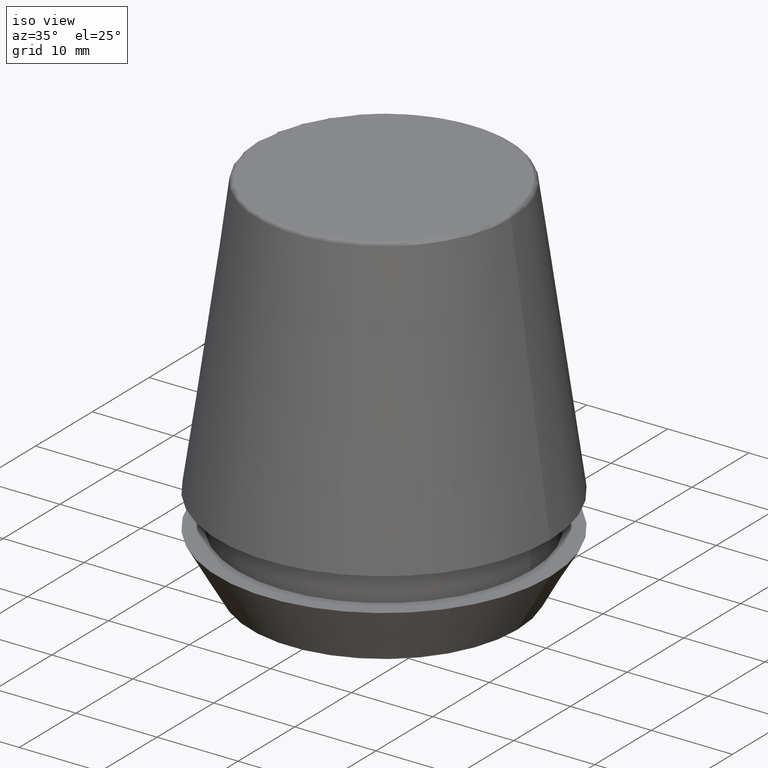
[diagram: clean part render]
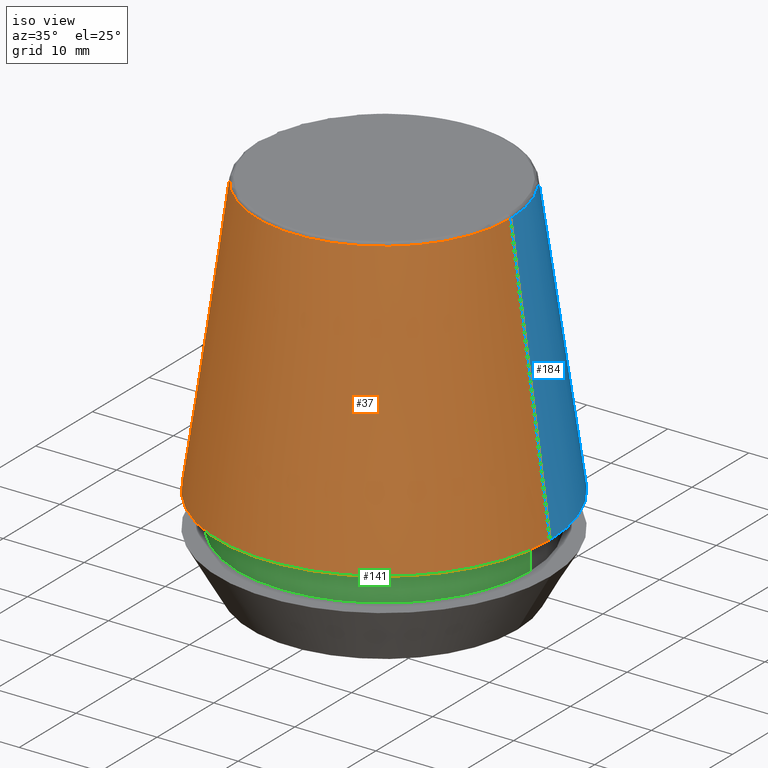
[diagram: same view with three faces highlighted in distinct colors, each labeled with its STEP entity id]
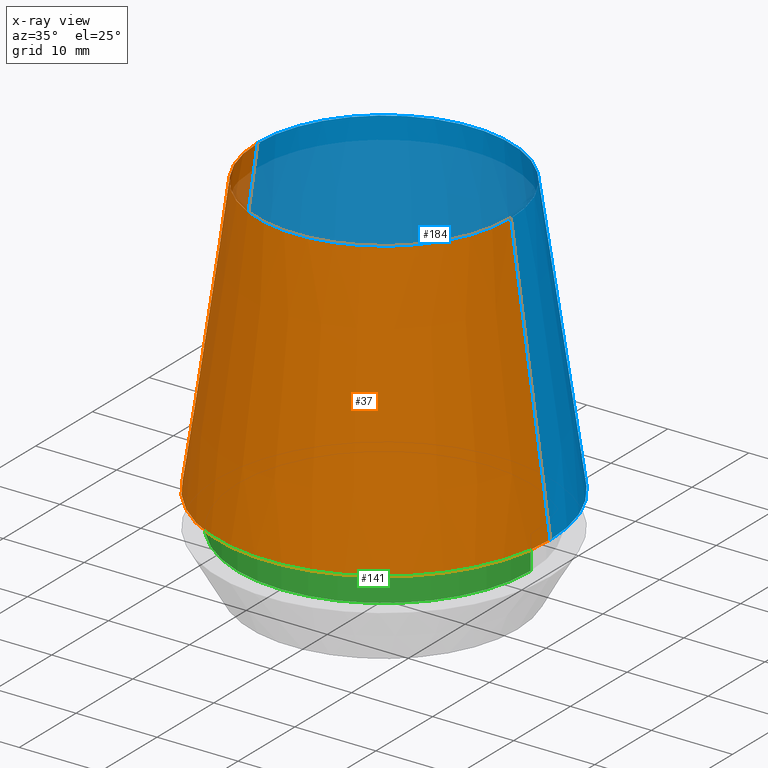
[diagram: x-ray of the same camera — body ghosted, the three highlighted faces saturated]
A machine part, iso view with three faces highlighted in distinct colors.
The next image is the same camera in x-ray (body ghosted, the three faces saturated) — at least one of them is partly hidden behind the body in this view.
Their STEP definitions:

[orange] entity #37 — the highlighted conical surface has half-angle 8 deg.
#1 = DIRECTION ( 'NONE',  ( 1.000000000000000000, 0.0000000000000000000, 0.0000000000000000000 ) ) ;
#7 = EDGE_CURVE ( 'NONE', #333, #109, #367, .T. ) ;
#8 = VERTEX_POINT ( 'NONE', #320 ) ;
#15 = CIRCLE ( 'NONE', #350, 20.50032537154048700 ) ;
#29 = DIRECTION ( 'NONE',  ( -0.0000000000000000000, -0.0000000000000000000, 1.000000000000000000 ) ) ;
#37 = ADVANCED_FACE ( 'NONE', ( #66 ), #197, .T. ) ;
#41 = LINE ( 'NONE', #74, #326 ) ;
#58 = AXIS2_PLACEMENT_3D ( 'NONE', #156, #354, #236 ) ;
#64 = ORIENTED_EDGE ( 'NONE', *, *, #7, .F. ) ;
#65 = EDGE_LOOP ( 'NONE', ( #306, #64, #239, #279 ) ) ;
#66 = FACE_OUTER_BOUND ( 'NONE', #65, .T. ) ;
#74 = CARTESIAN_POINT ( 'NONE',  ( -20.50032537154048700, 0.0000000000000000000, 11.09999999999999800 ) ) ;
#109 = VERTEX_POINT ( 'NONE', #378 ) ;
#121 = CARTESIAN_POINT ( 'NONE',  ( 0.0000000000000000000, 0.0000000000000000000, 45.65566924038402900 ) ) ;
#122 = CARTESIAN_POINT ( 'NONE',  ( 20.50032537154048700, 2.510565784773633700E-015, 11.09999999999999800 ) ) ;
#138 = DIRECTION ( 'NONE',  ( -0.1391731009600587200, 0.0000000000000000000, -0.9902680687415712500 ) ) ;
#156 = CARTESIAN_POINT ( 'NONE',  ( 0.0000000000000000000, 0.0000000000000000000, 11.09999999999999800 ) ) ;
#197 = CONICAL_SURFACE ( 'NONE', #58, 20.50032537154048700, 0.1396263401595396200 ) ;
#201 = LINE ( 'NONE', #290, #284 ) ;
#203 = CARTESIAN_POINT ( 'NONE',  ( 0.0000000000000000000, 0.0000000000000000000, 11.09999999999999800 ) ) ;
#223 = EDGE_CURVE ( 'NONE', #8, #261, #15, .T. ) ;
#234 = DIRECTION ( 'NONE',  ( 1.000000000000000000, 0.0000000000000000000, 0.0000000000000000000 ) ) ;
#235 = DIRECTION ( 'NONE',  ( 0.1391731009600587200, 1.704378926181473400E-017, -0.9902680687415712500 ) ) ;
#236 = DIRECTION ( 'NONE',  ( -1.000000000000000000, 0.0000000000000000000, 0.0000000000000000000 ) ) ;
#239 = ORIENTED_EDGE ( 'NONE', *, *, #339, .T. ) ;
#261 = VERTEX_POINT ( 'NONE', #122 ) ;
#279 = ORIENTED_EDGE ( 'NONE', *, *, #223, .T. ) ;
#284 = VECTOR ( 'NONE', #235, 1000.000000000000000 ) ;
#286 = DIRECTION ( 'NONE',  ( -0.0000000000000000000, -0.0000000000000000000, 1.000000000000000000 ) ) ;
#290 = CARTESIAN_POINT ( 'NONE',  ( 20.50032537154048700, 2.510565784773633700E-015, 11.09999999999999800 ) ) ;
#295 = EDGE_CURVE ( 'NONE', #109, #261, #201, .T. ) ;
#306 = ORIENTED_EDGE ( 'NONE', *, *, #295, .F. ) ;
#307 = CARTESIAN_POINT ( 'NONE',  ( -15.64384277279740400, 0.0000000000000000000, 45.65566924038402900 ) ) ;
#317 = AXIS2_PLACEMENT_3D ( 'NONE', #121, #286, #1 ) ;
#320 = CARTESIAN_POINT ( 'NONE',  ( -20.50032537154048700, 0.0000000000000000000, 11.09999999999999800 ) ) ;
#326 = VECTOR ( 'NONE', #138, 1000.000000000000000 ) ;
#333 = VERTEX_POINT ( 'NONE', #307 ) ;
#339 = EDGE_CURVE ( 'NONE', #333, #8, #41, .T. ) ;
#350 = AXIS2_PLACEMENT_3D ( 'NONE', #203, #29, #234 ) ;
#354 = DIRECTION ( 'NONE',  ( 0.0000000000000000000, 0.0000000000000000000, -1.000000000000000000 ) ) ;
#367 = CIRCLE ( 'NONE', #317, 15.64384277279740400 ) ;
#378 = CARTESIAN_POINT ( 'NONE',  ( 15.64384277279740400, 2.213191991290356800E-015, 45.65566924038402900 ) ) ;

[blue] entity #184 — the highlighted conical surface has half-angle 8 deg.
#8 = VERTEX_POINT ( 'NONE', #320 ) ;
#41 = LINE ( 'NONE', #74, #326 ) ;
#52 = DIRECTION ( 'NONE',  ( 0.0000000000000000000, 0.0000000000000000000, -1.000000000000000000 ) ) ;
#74 = CARTESIAN_POINT ( 'NONE',  ( -20.50032537154048700, 0.0000000000000000000, 11.09999999999999800 ) ) ;
#81 = DIRECTION ( 'NONE',  ( 1.000000000000000000, 0.0000000000000000000, 0.0000000000000000000 ) ) ;
#90 = CIRCLE ( 'NONE', #137, 20.50032537154048700 ) ;
#98 = EDGE_LOOP ( 'NONE', ( #364, #186, #252, #106 ) ) ;
#106 = ORIENTED_EDGE ( 'NONE', *, *, #339, .F. ) ;
#109 = VERTEX_POINT ( 'NONE', #378 ) ;
#122 = CARTESIAN_POINT ( 'NONE',  ( 20.50032537154048700, 2.510565784773633700E-015, 11.09999999999999800 ) ) ;
#123 = FACE_OUTER_BOUND ( 'NONE', #98, .T. ) ;
#127 = EDGE_CURVE ( 'NONE', #261, #8, #90, .T. ) ;
#137 = AXIS2_PLACEMENT_3D ( 'NONE', #193, #256, #81 ) ;
#138 = DIRECTION ( 'NONE',  ( -0.1391731009600587200, 0.0000000000000000000, -0.9902680687415712500 ) ) ;
#165 = AXIS2_PLACEMENT_3D ( 'NONE', #276, #259, #348 ) ;
#184 = ADVANCED_FACE ( 'NONE', ( #123 ), #323, .T. ) ;
#186 = ORIENTED_EDGE ( 'NONE', *, *, #295, .T. ) ;
#189 = EDGE_CURVE ( 'NONE', #109, #333, #334, .T. ) ;
#193 = CARTESIAN_POINT ( 'NONE',  ( 0.0000000000000000000, 0.0000000000000000000, 11.09999999999999800 ) ) ;
#201 = LINE ( 'NONE', #290, #284 ) ;
#235 = DIRECTION ( 'NONE',  ( 0.1391731009600587200, 1.704378926181473400E-017, -0.9902680687415712500 ) ) ;
#252 = ORIENTED_EDGE ( 'NONE', *, *, #127, .T. ) ;
#254 = DIRECTION ( 'NONE',  ( -1.000000000000000000, 0.0000000000000000000, 0.0000000000000000000 ) ) ;
#256 = DIRECTION ( 'NONE',  ( -0.0000000000000000000, -0.0000000000000000000, 1.000000000000000000 ) ) ;
#259 = DIRECTION ( 'NONE',  ( -0.0000000000000000000, -0.0000000000000000000, 1.000000000000000000 ) ) ;
#261 = VERTEX_POINT ( 'NONE', #122 ) ;
#276 = CARTESIAN_POINT ( 'NONE',  ( 0.0000000000000000000, 0.0000000000000000000, 45.65566924038402900 ) ) ;
#284 = VECTOR ( 'NONE', #235, 1000.000000000000000 ) ;
#290 = CARTESIAN_POINT ( 'NONE',  ( 20.50032537154048700, 2.510565784773633700E-015, 11.09999999999999800 ) ) ;
#295 = EDGE_CURVE ( 'NONE', #109, #261, #201, .T. ) ;
#307 = CARTESIAN_POINT ( 'NONE',  ( -15.64384277279740400, 0.0000000000000000000, 45.65566924038402900 ) ) ;
#308 = AXIS2_PLACEMENT_3D ( 'NONE', #369, #52, #254 ) ;
#320 = CARTESIAN_POINT ( 'NONE',  ( -20.50032537154048700, 0.0000000000000000000, 11.09999999999999800 ) ) ;
#323 = CONICAL_SURFACE ( 'NONE', #308, 20.50032537154048700, 0.1396263401595396200 ) ;
#326 = VECTOR ( 'NONE', #138, 1000.000000000000000 ) ;
#333 = VERTEX_POINT ( 'NONE', #307 ) ;
#334 = CIRCLE ( 'NONE', #165, 15.64384277279740400 ) ;
#339 = EDGE_CURVE ( 'NONE', #333, #8, #41, .T. ) ;
#348 = DIRECTION ( 'NONE',  ( 1.000000000000000000, 0.0000000000000000000, 0.0000000000000000000 ) ) ;
#364 = ORIENTED_EDGE ( 'NONE', *, *, #189, .F. ) ;
#369 = CARTESIAN_POINT ( 'NONE',  ( 0.0000000000000000000, 0.0000000000000000000, 11.09999999999999800 ) ) ;
#378 = CARTESIAN_POINT ( 'NONE',  ( 15.64384277279740400, 2.213191991290356800E-015, 45.65566924038402900 ) ) ;

[green] entity #141 — the highlighted cylindrical surface (partial cylindrical patch) has radius 18.1 mm, axis along (-0, -0, 1).
#59 = CARTESIAN_POINT ( 'NONE',  ( -18.10000000000000500, 2.216610706456710000E-015, 46.00000000000000000 ) ) ;
#60 = ORIENTED_EDGE ( 'NONE', *, *, #240, .F. ) ;
#63 = EDGE_CURVE ( 'NONE', #247, #373, #208, .T. ) ;
#68 = FACE_OUTER_BOUND ( 'NONE', #182, .T. ) ;
#72 = CYLINDRICAL_SURFACE ( 'NONE', #300, 18.10000000000000500 ) ;
#84 = AXIS2_PLACEMENT_3D ( 'NONE', #202, #351, #183 ) ;
#85 = VECTOR ( 'NONE', #263, 1000.000000000000000 ) ;
#91 = CARTESIAN_POINT ( 'NONE',  ( -18.10000000000000100, 2.216610706456709600E-015, 6.999999999999999100 ) ) ;
#96 = VERTEX_POINT ( 'NONE', #174 ) ;
#104 = VECTOR ( 'NONE', #322, 1000.000000000000000 ) ;
#105 = AXIS2_PLACEMENT_3D ( 'NONE', #196, #204, #374 ) ;
#112 = CARTESIAN_POINT ( 'NONE',  ( 0.0000000000000000000, 0.0000000000000000000, 46.00000000000000000 ) ) ;
#126 = LINE ( 'NONE', #59, #85 ) ;
#133 = VERTEX_POINT ( 'NONE', #313 ) ;
#139 = CARTESIAN_POINT ( 'NONE',  ( 18.10000000000000500, 0.0000000000000000000, 46.00000000000000000 ) ) ;
#141 = ADVANCED_FACE ( 'NONE', ( #68 ), #72, .T. ) ;
#174 = CARTESIAN_POINT ( 'NONE',  ( 18.10000000000000500, 0.0000000000000000000, 11.09999999999999800 ) ) ;
#182 = EDGE_LOOP ( 'NONE', ( #305, #338, #226, #60 ) ) ;
#183 = DIRECTION ( 'NONE',  ( 1.000000000000000000, 0.0000000000000000000, 0.0000000000000000000 ) ) ;
#185 = CARTESIAN_POINT ( 'NONE',  ( 18.10000000000000100, 0.0000000000000000000, 6.999999999999999100 ) ) ;
#196 = CARTESIAN_POINT ( 'NONE',  ( 0.0000000000000000000, 0.0000000000000000000, 6.999999999999999100 ) ) ;
#198 = DIRECTION ( 'NONE',  ( 1.000000000000000000, 0.0000000000000000000, 0.0000000000000000000 ) ) ;
#202 = CARTESIAN_POINT ( 'NONE',  ( 0.0000000000000000000, 0.0000000000000000000, 11.09999999999999800 ) ) ;
#204 = DIRECTION ( 'NONE',  ( -0.0000000000000000000, -0.0000000000000000000, 1.000000000000000000 ) ) ;
#208 = CIRCLE ( 'NONE', #105, 18.10000000000000100 ) ;
#226 = ORIENTED_EDGE ( 'NONE', *, *, #365, .T. ) ;
#240 = EDGE_CURVE ( 'NONE', #133, #96, #368, .T. ) ;
#247 = VERTEX_POINT ( 'NONE', #91 ) ;
#263 = DIRECTION ( 'NONE',  ( -0.0000000000000000000, -0.0000000000000000000, 1.000000000000000000 ) ) ;
#267 = LINE ( 'NONE', #139, #104 ) ;
#280 = EDGE_CURVE ( 'NONE', #247, #133, #126, .T. ) ;
#300 = AXIS2_PLACEMENT_3D ( 'NONE', #112, #344, #198 ) ;
#305 = ORIENTED_EDGE ( 'NONE', *, *, #280, .F. ) ;
#313 = CARTESIAN_POINT ( 'NONE',  ( -18.10000000000000500, 2.216610706456710000E-015, 11.09999999999999800 ) ) ;
#322 = DIRECTION ( 'NONE',  ( -0.0000000000000000000, -0.0000000000000000000, 1.000000000000000000 ) ) ;
#338 = ORIENTED_EDGE ( 'NONE', *, *, #63, .T. ) ;
#344 = DIRECTION ( 'NONE',  ( -0.0000000000000000000, -0.0000000000000000000, 1.000000000000000000 ) ) ;
#351 = DIRECTION ( 'NONE',  ( -0.0000000000000000000, -0.0000000000000000000, 1.000000000000000000 ) ) ;
#365 = EDGE_CURVE ( 'NONE', #373, #96, #267, .T. ) ;
#368 = CIRCLE ( 'NONE', #84, 18.10000000000000500 ) ;
#373 = VERTEX_POINT ( 'NONE', #185 ) ;
#374 = DIRECTION ( 'NONE',  ( 1.000000000000000000, 0.0000000000000000000, 0.0000000000000000000 ) ) ;